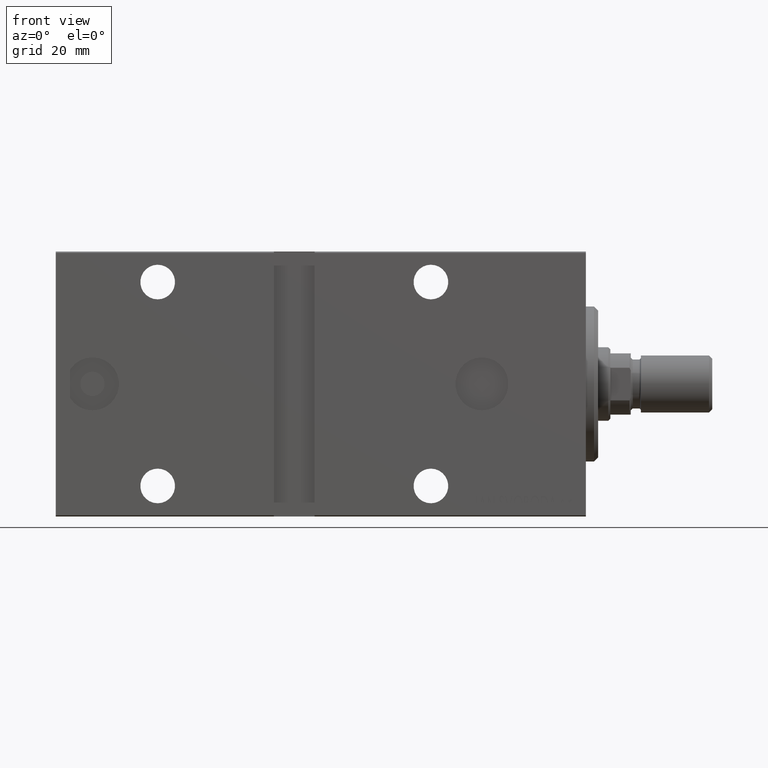
[diagram: clean part render]
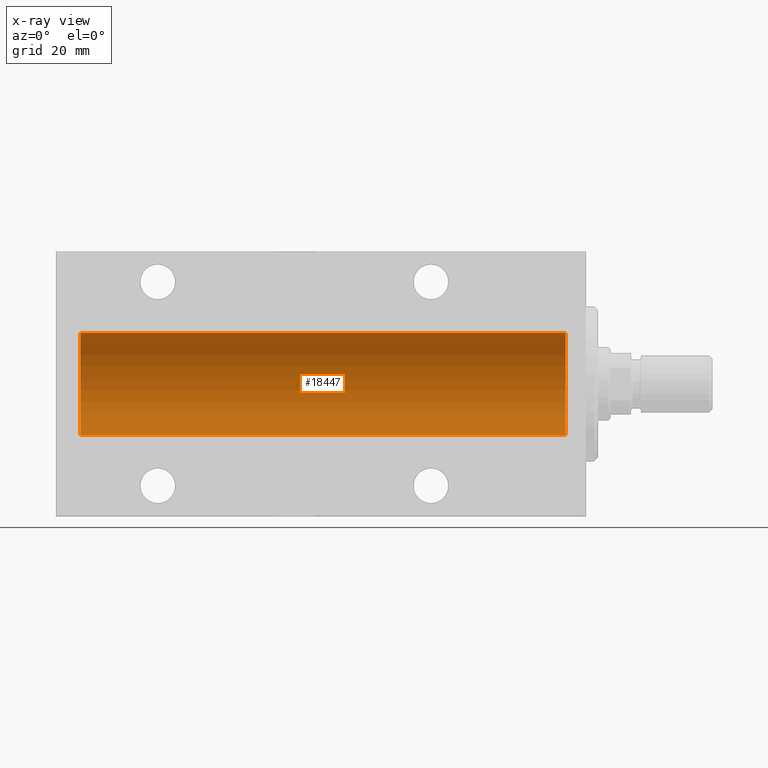
[diagram: x-ray — body ghosted, one internal face saturated and labeled with its STEP entity id]
A machine part, front view, then the same camera in x-ray: the body is ghosted and one INTERNAL B-rep face — a face not visible from any outside direction — is saturated and labeled: STEP entity #18447.
In plain terms, the highlighted cylindrical surface (partial cylindrical patch) has radius 12.5 mm, axis along (1, 0, -0).
Its self-contained STEP definition (entity closure, byte-faithful):
#574 = DIRECTION ( 'NONE',  ( -1.000000000000000000, -0.000000000000000000, -0.000000000000000000 ) ) ;
#773 = EDGE_CURVE ( 'NONE', #40121, #4111, #30652, .T. ) ;
#898 = CARTESIAN_POINT ( 'NONE',  ( 124.0000000000000000, 0.000000000000000000, 0.000000000000000000 ) ) ;
#1528 = DIRECTION ( 'NONE',  ( -1.000000000000000000, 0.000000000000000000, 0.000000000000000000 ) ) ;
#4111 = VERTEX_POINT ( 'NONE', #8022 ) ;
#4402 = DIRECTION ( 'NONE',  ( -1.000000000000000000, -0.000000000000000000, -0.000000000000000000 ) ) ;
#4986 = CIRCLE ( 'NONE', #36463, 12.50000000000000000 ) ;
#5376 = LINE ( 'NONE', #42602, #6552 ) ;
#6552 = VECTOR ( 'NONE', #15041, 1000.000000000000000 ) ;
#6963 = DIRECTION ( 'NONE',  ( 0.000000000000000000, 0.000000000000000000, 1.000000000000000000 ) ) ;
#8022 = CARTESIAN_POINT ( 'NONE',  ( 5.000000000000004441, 0.000000000000000000, 12.50000000000000000 ) ) ;
#10058 = ORIENTED_EDGE ( 'NONE', *, *, #773, .T. ) ;
#13685 = EDGE_LOOP ( 'NONE', ( #31732, #21841, #10058, #36475 ) ) ;
#15041 = DIRECTION ( 'NONE',  ( -1.000000000000000000, -0.000000000000000000, -0.000000000000000000 ) ) ;
#16352 = VECTOR ( 'NONE', #574, 1000.000000000000000 ) ;
#16572 = LINE ( 'NONE', #29947, #16352 ) ;
#17716 = EDGE_CURVE ( 'NONE', #42789, #23147, #4986, .T. ) ;
#18447 = ADVANCED_FACE ( 'NONE', ( #37034 ), #30935, .F. ) ;
#19767 = CARTESIAN_POINT ( 'NONE',  ( 124.0000000000000000, 0.000000000000000000, 12.50000000000000000 ) ) ;
#20410 = DIRECTION ( 'NONE',  ( 0.000000000000000000, 0.000000000000000000, 1.000000000000000000 ) ) ;
#20986 = CARTESIAN_POINT ( 'NONE',  ( 5.000000000000004441, 1.530808498934191521E-15, -12.50000000000000000 ) ) ;
#21841 = ORIENTED_EDGE ( 'NONE', *, *, #29961, .T. ) ;
#23147 = VERTEX_POINT ( 'NONE', #19767 ) ;
#24342 = DIRECTION ( 'NONE',  ( 0.000000000000000000, 0.000000000000000000, 1.000000000000000000 ) ) ;
#26444 = AXIS2_PLACEMENT_3D ( 'NONE', #41608, #1528, #24342 ) ;
#26703 = DIRECTION ( 'NONE',  ( -1.000000000000000000, 0.000000000000000000, 0.000000000000000000 ) ) ;
#27274 = CARTESIAN_POINT ( 'NONE',  ( 124.0000000000000000, 1.530808498934191521E-15, -12.50000000000000000 ) ) ;
#29856 = EDGE_CURVE ( 'NONE', #23147, #4111, #16572, .T. ) ;
#29947 = CARTESIAN_POINT ( 'NONE',  ( 124.0000000000000000, 0.000000000000000000, 12.50000000000000000 ) ) ;
#29961 = EDGE_CURVE ( 'NONE', #42789, #40121, #5376, .T. ) ;
#30652 = CIRCLE ( 'NONE', #26444, 12.50000000000000000 ) ;
#30935 = CYLINDRICAL_SURFACE ( 'NONE', #33656, 12.50000000000000000 ) ;
#31732 = ORIENTED_EDGE ( 'NONE', *, *, #17716, .F. ) ;
#33656 = AXIS2_PLACEMENT_3D ( 'NONE', #898, #4402, #20410 ) ;
#36463 = AXIS2_PLACEMENT_3D ( 'NONE', #36757, #26703, #6963 ) ;
#36475 = ORIENTED_EDGE ( 'NONE', *, *, #29856, .F. ) ;
#36757 = CARTESIAN_POINT ( 'NONE',  ( 124.0000000000000000, 0.000000000000000000, 0.000000000000000000 ) ) ;
#37034 = FACE_OUTER_BOUND ( 'NONE', #13685, .T. ) ;
#40121 = VERTEX_POINT ( 'NONE', #20986 ) ;
#41608 = CARTESIAN_POINT ( 'NONE',  ( 5.000000000000004441, 0.000000000000000000, 0.000000000000000000 ) ) ;
#42602 = CARTESIAN_POINT ( 'NONE',  ( 124.0000000000000000, 1.530808498934191521E-15, -12.50000000000000000 ) ) ;
#42789 = VERTEX_POINT ( 'NONE', #27274 ) ;